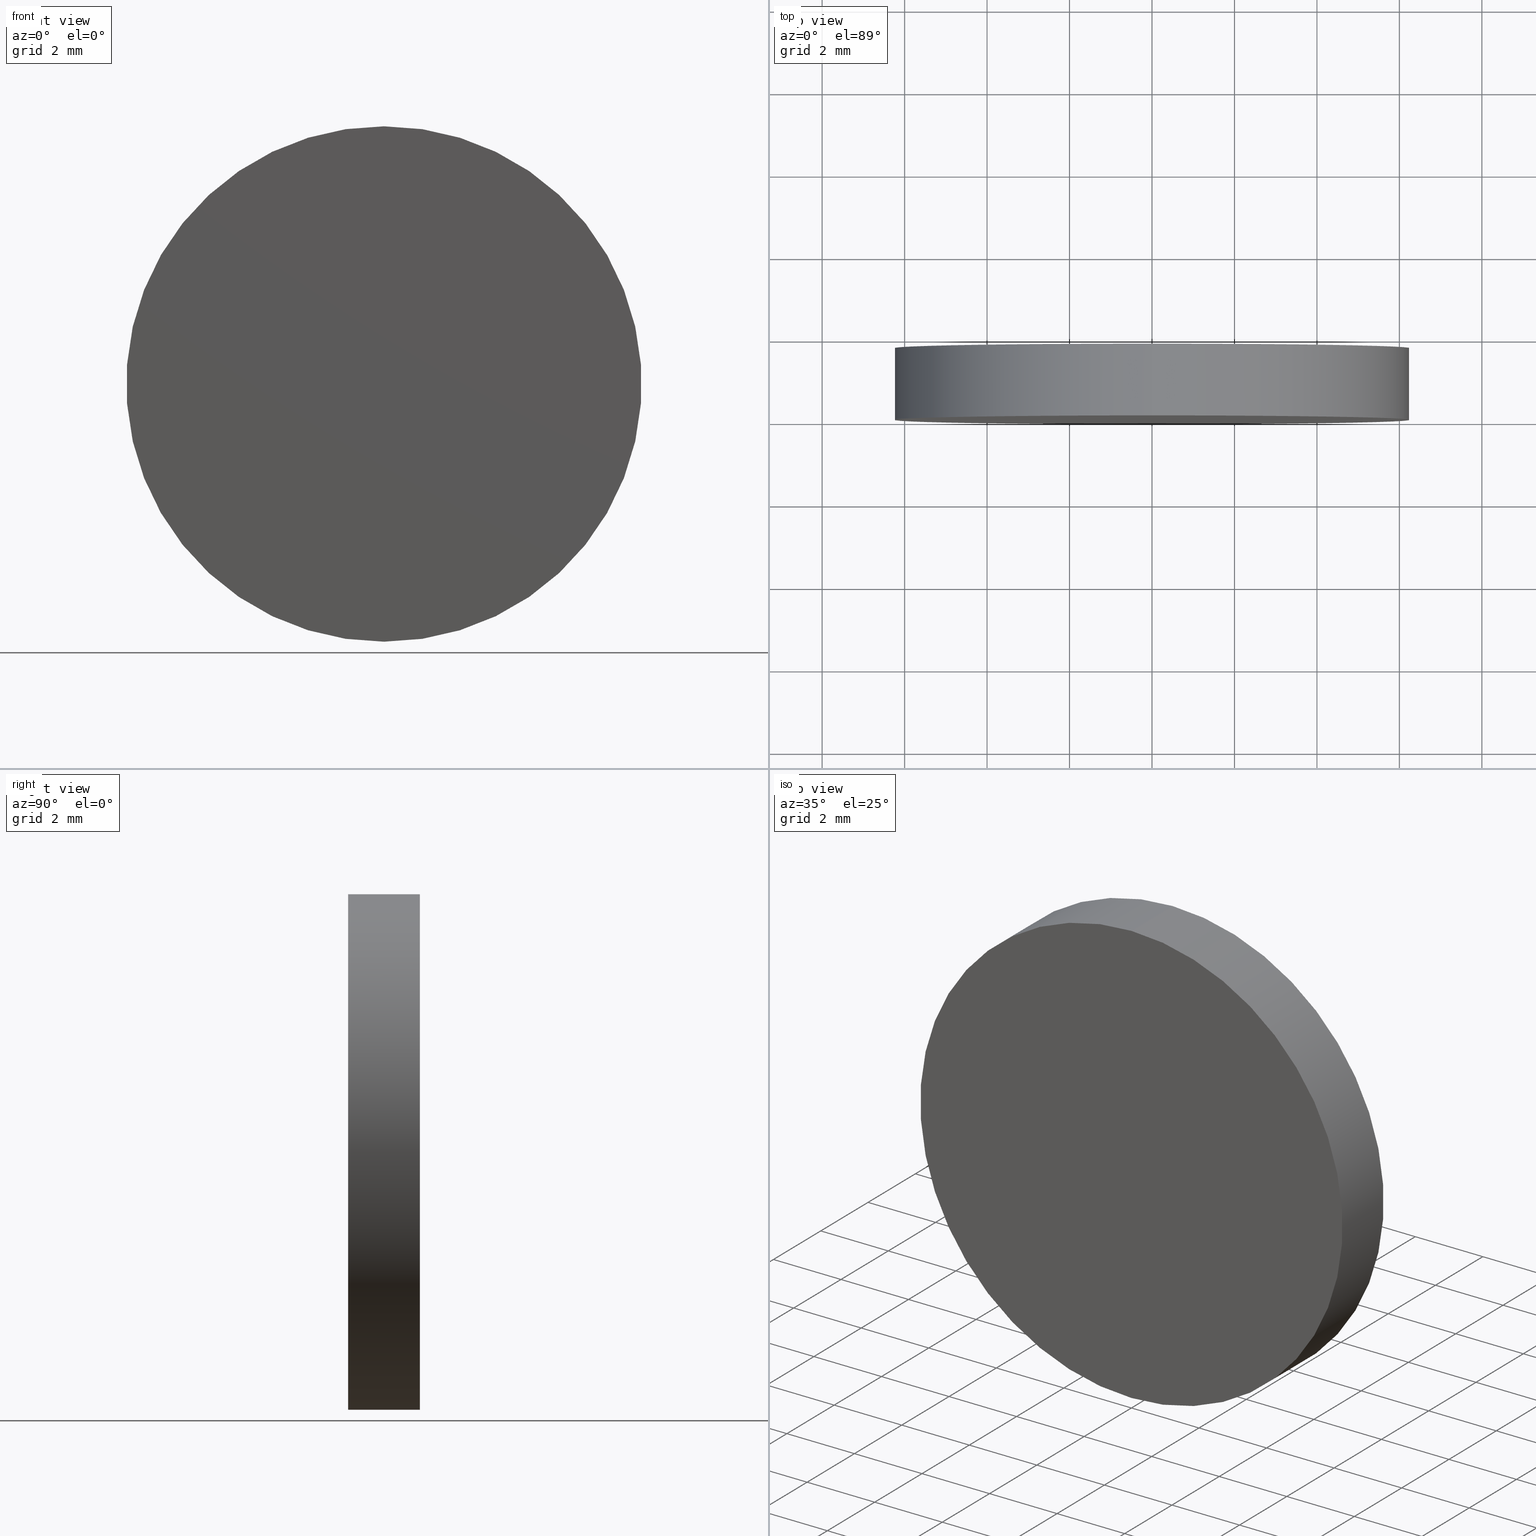
[diagram: canonical four-view strip — front | top / right | iso, engineering-drawing reading convention]
A machine part, canonical four-view strip (front | top / right | iso — engineering-drawing reading convention). The complete STEP part file that produces these views, byte-faithful:
ISO-10303-21;
HEADER;
FILE_DESCRIPTION (( 'STEP AP214' ),
    '1' );
FILE_NAME ('248571.STEP',
    '2019-08-02T08:28:08',
    ( 'user' ),
    ( '΢���й�' ),
    'SwSTEP 2.0',
    'SolidWorks 2016',
    '' );
FILE_SCHEMA (( 'AUTOMOTIVE_DESIGN' ));
ENDSEC;

DATA;
#1 = DIRECTION ( 'NONE',  ( 0.0000000000000000000, 0.0000000000000000000, 1.000000000000000000 ) ) ;
#2 = EDGE_LOOP ( 'NONE', ( #23, #129, #120, #21 ) ) ;
#3 =( NAMED_UNIT ( * ) PLANE_ANGLE_UNIT ( ) SI_UNIT ( $, .RADIAN. ) );
#4 = SURFACE_SIDE_STYLE ('',( #56 ) ) ;
#5 = CARTESIAN_POINT ( 'NONE',  ( 0.0000000000000000000, 1.740000000000000000, 0.0000000000000000000 ) ) ;
#6 = DIRECTION ( 'NONE',  ( 0.0000000000000000000, -0.0000000000000000000, 1.000000000000000000 ) ) ;
#7 = CARTESIAN_POINT ( 'NONE',  ( 7.654042494670957600E-016, 0.0000000000000000000, 6.250000000000000000 ) ) ;
#8 = VERTEX_POINT ( 'NONE', #78 ) ;
#9 = DIRECTION ( 'NONE',  ( 0.0000000000000000000, 1.000000000000000000, 0.0000000000000000000 ) ) ;
#10 = AXIS2_PLACEMENT_3D ( 'NONE', #133, #72, #1 ) ;
#11 = CIRCLE ( 'NONE', #108, 6.250000000000000000 ) ;
#12 = VERTEX_POINT ( 'NONE', #32 ) ;
#13 = UNCERTAINTY_MEASURE_WITH_UNIT (LENGTH_MEASURE( 1.000000000000000100E-005 ), #74, 'distance_accuracy_value', 'NONE');
#14 = LINE ( 'NONE', #17, #124 ) ;
#15 =( GEOMETRIC_REPRESENTATION_CONTEXT ( 3 ) GLOBAL_UNCERTAINTY_ASSIGNED_CONTEXT ( ( #63 ) ) GLOBAL_UNIT_ASSIGNED_CONTEXT ( ( #44, #107, #96 ) ) REPRESENTATION_CONTEXT ( 'NONE', 'WORKASPACE' ) );
#16 = DIRECTION ( 'NONE',  ( 0.0000000000000000000, 0.0000000000000000000, 1.000000000000000000 ) ) ;
#17 = CARTESIAN_POINT ( 'NONE',  ( 7.654042494670957600E-016, 1.740000000000000000, 6.250000000000000000 ) ) ;
#18 = PRODUCT_DEFINITION_SHAPE ( 'NONE', 'NONE',  #22 ) ;
#19 = APPLICATION_PROTOCOL_DEFINITION ( 'draft international standard', 'automotive_design', 1998, #65 ) ;
#20 = ADVANCED_FACE ( 'NONE', ( #134 ), #99, .F. ) ;
#21 = ORIENTED_EDGE ( 'NONE', *, *, #137, .T. ) ;
#22 = PRODUCT_DEFINITION ( 'δ֪', '', #126, #80 ) ;
#23 = ORIENTED_EDGE ( 'NONE', *, *, #73, .F. ) ;
#24 = DIRECTION ( 'NONE',  ( 0.0000000000000000000, 0.0000000000000000000, 1.000000000000000000 ) ) ;
#25 = MECHANICAL_DESIGN_GEOMETRIC_PRESENTATION_REPRESENTATION (  '', ( #36 ), #15 ) ;
#26 = DIRECTION ( 'NONE',  ( -0.0000000000000000000, -1.000000000000000000, -0.0000000000000000000 ) ) ;
#27 = FACE_OUTER_BOUND ( 'NONE', #55, .T. ) ;
#28 = CARTESIAN_POINT ( 'NONE',  ( 0.0000000000000000000, 1.740000000000000000, 0.0000000000000000000 ) ) ;
#29 = VERTEX_POINT ( 'NONE', #7 ) ;
#30 = SURFACE_STYLE_FILL_AREA ( #128 ) ;
#31 = PRODUCT ( '248571', '248571', '', ( #41 ) ) ;
#32 = CARTESIAN_POINT ( 'NONE',  ( 7.654042494670957600E-016, 1.740000000000000000, 6.250000000000000000 ) ) ;
#33 = DIRECTION ( 'NONE',  ( 0.0000000000000000000, -0.0000000000000000000, 1.000000000000000000 ) ) ;
#34 = CARTESIAN_POINT ( 'NONE',  ( 0.0000000000000000000, 0.0000000000000000000, 0.0000000000000000000 ) ) ;
#35 = ADVANCED_BREP_SHAPE_REPRESENTATION ( '248571', ( #40, #68 ), #130 ) ;
#36 = STYLED_ITEM ( 'NONE', ( #139 ), #35 ) ;
#37 = AXIS2_PLACEMENT_3D ( 'NONE', #28, #89, #16 ) ;
#38 = ORIENTED_EDGE ( 'NONE', *, *, #137, .F. ) ;
#39 = ADVANCED_FACE ( 'NONE', ( #140 ), #136, .T. ) ;
#40 = MANIFOLD_SOLID_BREP ( '͹̨-����1', #104 ) ;
#41 = PRODUCT_CONTEXT ( 'NONE', #65, 'mechanical' ) ;
#42 = CIRCLE ( 'NONE', #37, 6.250000000000000000 ) ;
#43 = ORIENTED_EDGE ( 'NONE', *, *, #87, .T. ) ;
#44 =( LENGTH_UNIT ( ) NAMED_UNIT ( * ) SI_UNIT ( .MILLI., .METRE. ) );
#45 = VECTOR ( 'NONE', #49, 1000.000000000000000 ) ;
#46 = EDGE_LOOP ( 'NONE', ( #43, #85 ) ) ;
#47 = ADVANCED_FACE ( 'NONE', ( #50 ), #97, .T. ) ;
#48 = CARTESIAN_POINT ( 'NONE',  ( 0.0000000000000000000, 1.740000000000000000, 0.0000000000000000000 ) ) ;
#49 = DIRECTION ( 'NONE',  ( -0.0000000000000000000, -1.000000000000000000, -0.0000000000000000000 ) ) ;
#50 = FACE_OUTER_BOUND ( 'NONE', #46, .T. ) ;
#51 = AXIS2_PLACEMENT_3D ( 'NONE', #5, #9, #6 ) ;
#52 =( LENGTH_UNIT ( ) NAMED_UNIT ( * ) SI_UNIT ( .MILLI., .METRE. ) );
#53 = PRESENTATION_LAYER_ASSIGNMENT (  '', '', ( #36 ) ) ;
#54 = DIRECTION ( 'NONE',  ( 0.0000000000000000000, 1.000000000000000000, 0.0000000000000000000 ) ) ;
#55 = EDGE_LOOP ( 'NONE', ( #90, #81, #113, #116 ) ) ;
#56 = SURFACE_STYLE_FILL_AREA ( #76 ) ;
#57 = SURFACE_SIDE_STYLE ('',( #30 ) ) ;
#58 = EDGE_CURVE ( 'NONE', #95, #8, #75, .T. ) ;
#59 = AXIS2_PLACEMENT_3D ( 'NONE', #125, #26, #67 ) ;
#60 = ADVANCED_FACE ( 'NONE', ( #27 ), #69, .T. ) ;
#61 = COLOUR_RGB ( '',1.000000000000000000, 1.000000000000000000, 1.000000000000000000 ) ;
#62 = DIRECTION ( 'NONE',  ( 0.0000000000000000000, 1.000000000000000000, 0.0000000000000000000 ) ) ;
#63 = UNCERTAINTY_MEASURE_WITH_UNIT (LENGTH_MEASURE( 1.000000000000000100E-005 ), #44, 'distance_accuracy_value', 'NONE');
#64 = CARTESIAN_POINT ( 'NONE',  ( 0.0000000000000000000, 1.740000000000000000, 0.0000000000000000000 ) ) ;
#65 = APPLICATION_CONTEXT ( 'automotive_design' ) ;
#66 =( GEOMETRIC_REPRESENTATION_CONTEXT ( 3 ) GLOBAL_UNCERTAINTY_ASSIGNED_CONTEXT ( ( #13 ) ) GLOBAL_UNIT_ASSIGNED_CONTEXT ( ( #74, #92, #123 ) ) REPRESENTATION_CONTEXT ( 'NONE', 'WORKASPACE' ) );
#67 = DIRECTION ( 'NONE',  ( 0.0000000000000000000, 0.0000000000000000000, -1.000000000000000000 ) ) ;
#68 = AXIS2_PLACEMENT_3D ( 'NONE', #93, #24, #105 ) ;
#69 = CYLINDRICAL_SURFACE ( 'NONE', #100, 6.250000000000000000 ) ;
#70 = FILL_AREA_STYLE_COLOUR ( '', #61 ) ;
#71 = PRODUCT_RELATED_PRODUCT_CATEGORY ( 'part', '', ( #31 ) ) ;
#72 = DIRECTION ( 'NONE',  ( 0.0000000000000000000, 1.000000000000000000, 0.0000000000000000000 ) ) ;
#73 = EDGE_CURVE ( 'NONE', #12, #29, #14, .T. ) ;
#74 =( LENGTH_UNIT ( ) NAMED_UNIT ( * ) SI_UNIT ( .MILLI., .METRE. ) );
#75 = LINE ( 'NONE', #121, #45 ) ;
#76 = FILL_AREA_STYLE ('',( #103 ) ) ;
#77 = AXIS2_PLACEMENT_3D ( 'NONE', #34, #54, #33 ) ;
#78 = CARTESIAN_POINT ( 'NONE',  ( 0.0000000000000000000, 0.0000000000000000000, -6.250000000000000000 ) ) ;
#79 = SHAPE_DEFINITION_REPRESENTATION ( #18, #35 ) ;
#80 = PRODUCT_DEFINITION_CONTEXT ( 'detailed design', #91, 'design' ) ;
#81 = ORIENTED_EDGE ( 'NONE', *, *, #73, .T. ) ;
#82 = PRESENTATION_LAYER_ASSIGNMENT (  '', '', ( #101 ) ) ;
#83 = DIRECTION ( 'NONE',  ( -0.0000000000000000000, -1.000000000000000000, -0.0000000000000000000 ) ) ;
#84 = DIRECTION ( 'NONE',  ( 0.0000000000000000000, 0.0000000000000000000, -1.000000000000000000 ) ) ;
#85 = ORIENTED_EDGE ( 'NONE', *, *, #94, .T. ) ;
#86 = PRESENTATION_STYLE_ASSIGNMENT (( #135 ) ) ;
#87 = EDGE_CURVE ( 'NONE', #95, #12, #102, .T. ) ;
#88 = APPLICATION_PROTOCOL_DEFINITION ( 'draft international standard', 'automotive_design', 1998, #91 ) ;
#89 = DIRECTION ( 'NONE',  ( 0.0000000000000000000, 1.000000000000000000, 0.0000000000000000000 ) ) ;
#90 = ORIENTED_EDGE ( 'NONE', *, *, #94, .F. ) ;
#91 = APPLICATION_CONTEXT ( 'automotive_design' ) ;
#92 =( NAMED_UNIT ( * ) PLANE_ANGLE_UNIT ( ) SI_UNIT ( $, .RADIAN. ) );
#93 = CARTESIAN_POINT ( 'NONE',  ( 0.0000000000000000000, 0.0000000000000000000, 0.0000000000000000000 ) ) ;
#94 = EDGE_CURVE ( 'NONE', #12, #95, #42, .T. ) ;
#95 = VERTEX_POINT ( 'NONE', #132 ) ;
#96 =( NAMED_UNIT ( * ) SI_UNIT ( $, .STERADIAN. ) SOLID_ANGLE_UNIT ( ) );
#97 = PLANE ( 'NONE',  #51 ) ;
#98 = CIRCLE ( 'NONE', #10, 6.250000000000000000 ) ;
#99 = PLANE ( 'NONE',  #77 ) ;
#100 = AXIS2_PLACEMENT_3D ( 'NONE', #48, #112, #84 ) ;
#101 = STYLED_ITEM ( 'NONE', ( #86 ), #40 ) ;
#102 = CIRCLE ( 'NONE', #114, 6.250000000000000000 ) ;
#103 = FILL_AREA_STYLE_COLOUR ( '', #106 ) ;
#104 = CLOSED_SHELL ( 'NONE', ( #60, #39, #47, #20 ) ) ;
#105 = DIRECTION ( 'NONE',  ( 1.000000000000000000, 0.0000000000000000000, 0.0000000000000000000 ) ) ;
#106 = COLOUR_RGB ( '',1.000000000000000000, 1.000000000000000000, 1.000000000000000000 ) ;
#107 =( NAMED_UNIT ( * ) PLANE_ANGLE_UNIT ( ) SI_UNIT ( $, .RADIAN. ) );
#108 = AXIS2_PLACEMENT_3D ( 'NONE', #131, #62, #118 ) ;
#109 = EDGE_LOOP ( 'NONE', ( #38, #138 ) ) ;
#110 = EDGE_CURVE ( 'NONE', #29, #8, #11, .T. ) ;
#111 = DIRECTION ( 'NONE',  ( 0.0000000000000000000, 0.0000000000000000000, 1.000000000000000000 ) ) ;
#112 = DIRECTION ( 'NONE',  ( -0.0000000000000000000, -1.000000000000000000, -0.0000000000000000000 ) ) ;
#113 = ORIENTED_EDGE ( 'NONE', *, *, #110, .T. ) ;
#114 = AXIS2_PLACEMENT_3D ( 'NONE', #64, #119, #111 ) ;
#115 = SURFACE_STYLE_USAGE ( .BOTH. , #57 ) ;
#116 = ORIENTED_EDGE ( 'NONE', *, *, #58, .F. ) ;
#117 = MECHANICAL_DESIGN_GEOMETRIC_PRESENTATION_REPRESENTATION (  '', ( #101 ), #66 ) ;
#118 = DIRECTION ( 'NONE',  ( 0.0000000000000000000, 0.0000000000000000000, 1.000000000000000000 ) ) ;
#119 = DIRECTION ( 'NONE',  ( 0.0000000000000000000, 1.000000000000000000, 0.0000000000000000000 ) ) ;
#120 = ORIENTED_EDGE ( 'NONE', *, *, #58, .T. ) ;
#121 = CARTESIAN_POINT ( 'NONE',  ( 0.0000000000000000000, 1.740000000000000000, -6.250000000000000000 ) ) ;
#122 =( NAMED_UNIT ( * ) SI_UNIT ( $, .STERADIAN. ) SOLID_ANGLE_UNIT ( ) );
#123 =( NAMED_UNIT ( * ) SI_UNIT ( $, .STERADIAN. ) SOLID_ANGLE_UNIT ( ) );
#124 = VECTOR ( 'NONE', #83, 1000.000000000000000 ) ;
#125 = CARTESIAN_POINT ( 'NONE',  ( 0.0000000000000000000, 1.740000000000000000, 0.0000000000000000000 ) ) ;
#126 = PRODUCT_DEFINITION_FORMATION_WITH_SPECIFIED_SOURCE ( '�κ�', '', #31, .NOT_KNOWN. ) ;
#127 = UNCERTAINTY_MEASURE_WITH_UNIT (LENGTH_MEASURE( 1.000000000000000100E-005 ), #52, 'distance_accuracy_value', 'NONE');
#128 = FILL_AREA_STYLE ('',( #70 ) ) ;
#129 = ORIENTED_EDGE ( 'NONE', *, *, #87, .F. ) ;
#130 =( GEOMETRIC_REPRESENTATION_CONTEXT ( 3 ) GLOBAL_UNCERTAINTY_ASSIGNED_CONTEXT ( ( #127 ) ) GLOBAL_UNIT_ASSIGNED_CONTEXT ( ( #52, #3, #122 ) ) REPRESENTATION_CONTEXT ( 'NONE', 'WORKASPACE' ) );
#131 = CARTESIAN_POINT ( 'NONE',  ( 0.0000000000000000000, 0.0000000000000000000, 0.0000000000000000000 ) ) ;
#132 = CARTESIAN_POINT ( 'NONE',  ( 0.0000000000000000000, 1.740000000000000000, -6.250000000000000000 ) ) ;
#133 = CARTESIAN_POINT ( 'NONE',  ( 0.0000000000000000000, 0.0000000000000000000, 0.0000000000000000000 ) ) ;
#134 = FACE_OUTER_BOUND ( 'NONE', #109, .T. ) ;
#135 = SURFACE_STYLE_USAGE ( .BOTH. , #4 ) ;
#136 = CYLINDRICAL_SURFACE ( 'NONE', #59, 6.250000000000000000 ) ;
#137 = EDGE_CURVE ( 'NONE', #8, #29, #98, .T. ) ;
#138 = ORIENTED_EDGE ( 'NONE', *, *, #110, .F. ) ;
#139 = PRESENTATION_STYLE_ASSIGNMENT (( #115 ) ) ;
#140 = FACE_OUTER_BOUND ( 'NONE', #2, .T. ) ;
ENDSEC;
END-ISO-10303-21;
